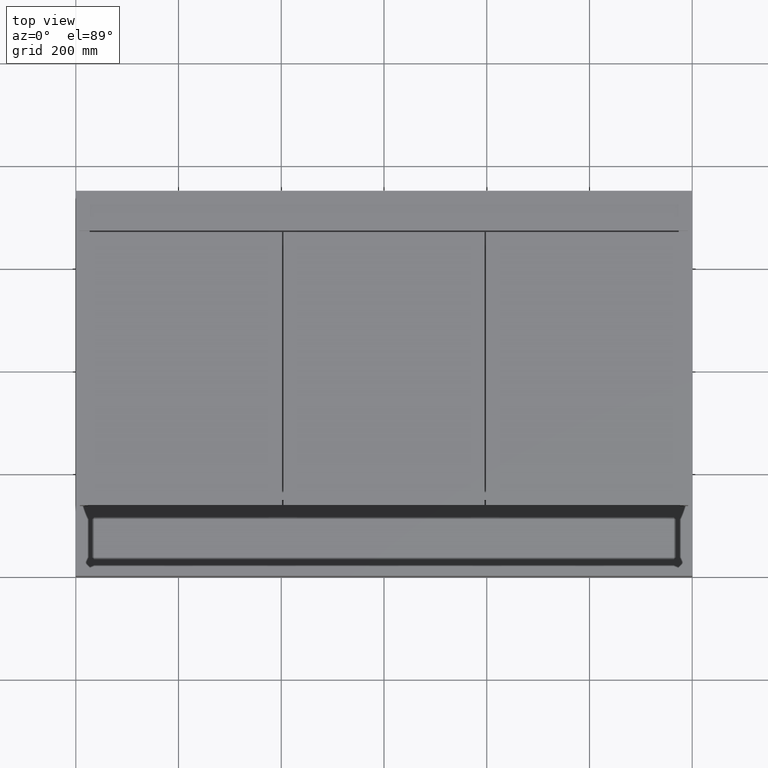
[diagram: clean part render]
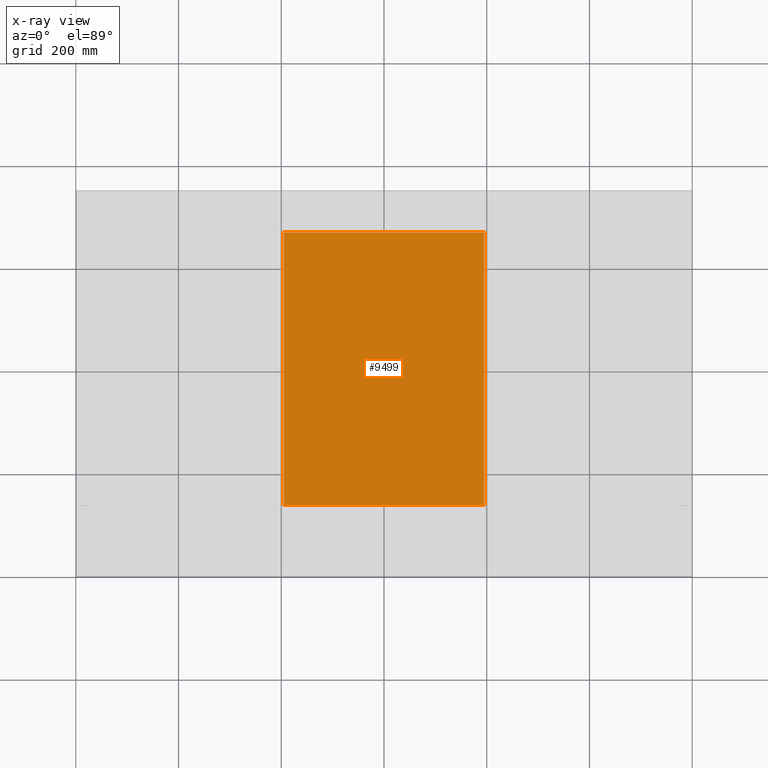
[diagram: x-ray — body ghosted, one internal face saturated and labeled with its STEP entity id]
A machine part, top view, then the same camera in x-ray: the body is ghosted and one INTERNAL B-rep face — a face not visible from any outside direction — is saturated and labeled: STEP entity #9499.
In plain terms, the highlighted planar face has unit normal (0, 0, 1).
Its self-contained STEP definition (entity closure, byte-faithful):
#64 = LINE ( 'NONE', #5462, #11784 ) ;
#85 = EDGE_CURVE ( 'NONE', #15130, #2136, #14606, .T. ) ;
#448 = EDGE_CURVE ( 'NONE', #6180, #15130, #11751, .T. ) ;
#962 = PLANE ( 'NONE',  #8967 ) ;
#2136 = VERTEX_POINT ( 'NONE', #16001 ) ;
#2429 = CARTESIAN_POINT ( 'NONE',  ( 404.6633333299999435, 668.9999000000001388, -5.999999999999939604 ) ) ;
#4631 = CARTESIAN_POINT ( 'NONE',  ( 404.6633333300000004, 138.0000000000000000, -5.999999999999939604 ) ) ;
#4978 = DIRECTION ( 'NONE',  ( -2.090815882686901485E-16, 1.000000000000000000, 0.0000000000000000000 ) ) ;
#5462 = CARTESIAN_POINT ( 'NONE',  ( 404.6633333299999435, 668.9999000000001388, -5.999999999999939604 ) ) ;
#6180 = VERTEX_POINT ( 'NONE', #12188 ) ;
#6360 = CARTESIAN_POINT ( 'NONE',  ( 0.0000000000000000000, 0.0000000000000000000, -5.999999999999939604 ) ) ;
#6485 = ORIENTED_EDGE ( 'NONE', *, *, #448, .F. ) ;
#7228 = ORIENTED_EDGE ( 'NONE', *, *, #16012, .F. ) ;
#7845 = DIRECTION ( 'NONE',  ( -1.000000000000000000, 1.412426827213328495E-38, 0.0000000000000000000 ) ) ;
#8949 = EDGE_CURVE ( 'NONE', #2136, #15820, #64, .T. ) ;
#8967 = AXIS2_PLACEMENT_3D ( 'NONE', #6360, #11811, #17231 ) ;
#9499 = ADVANCED_FACE ( 'NONE', ( #13147 ), #962, .F. ) ;
#9868 = ORIENTED_EDGE ( 'NONE', *, *, #85, .F. ) ;
#10068 = DIRECTION ( 'NONE',  ( 1.000000000000000000, 7.104487670637807378E-17, 0.0000000000000000000 ) ) ;
#10202 = CARTESIAN_POINT ( 'NONE',  ( 404.6633333300000004, 138.0000000000000000, -5.999999999999939604 ) ) ;
#10901 = DIRECTION ( 'NONE',  ( 1.045407941343450866E-16, -1.000000000000000000, 0.0000000000000000000 ) ) ;
#11446 = EDGE_LOOP ( 'NONE', ( #16538, #9868, #6485, #7228 ) ) ;
#11751 = LINE ( 'NONE', #17168, #15270 ) ;
#11784 = VECTOR ( 'NONE', #10901, 1000.000000000000000 ) ;
#11811 = DIRECTION ( 'NONE',  ( 0.0000000000000000000, 0.0000000000000000000, 1.000000000000000000 ) ) ;
#12188 = CARTESIAN_POINT ( 'NONE',  ( 795.3400000000000318, 138.0000000000000000, -5.999999999999939604 ) ) ;
#13147 = FACE_OUTER_BOUND ( 'NONE', #11446, .T. ) ;
#14606 = LINE ( 'NONE', #2429, #15834 ) ;
#15130 = VERTEX_POINT ( 'NONE', #15405 ) ;
#15270 = VECTOR ( 'NONE', #4978, 1000.000000000000000 ) ;
#15405 = CARTESIAN_POINT ( 'NONE',  ( 795.3399999999999181, 668.9999000000001388, -5.999999999999939604 ) ) ;
#15820 = VERTEX_POINT ( 'NONE', #10202 ) ;
#15834 = VECTOR ( 'NONE', #7845, 1000.000000000000000 ) ;
#16001 = CARTESIAN_POINT ( 'NONE',  ( 404.6633333299999435, 668.9999000000001388, -5.999999999999939604 ) ) ;
#16012 = EDGE_CURVE ( 'NONE', #15820, #6180, #16822, .T. ) ;
#16379 = VECTOR ( 'NONE', #10068, 1000.000000000000000 ) ;
#16538 = ORIENTED_EDGE ( 'NONE', *, *, #8949, .F. ) ;
#16822 = LINE ( 'NONE', #4631, #16379 ) ;
#17168 = CARTESIAN_POINT ( 'NONE',  ( 795.3399999999999181, 668.9999000000001388, -5.999999999999939604 ) ) ;
#17231 = DIRECTION ( 'NONE',  ( 1.000000000000000000, -1.412426827213328495E-38, 0.0000000000000000000 ) ) ;